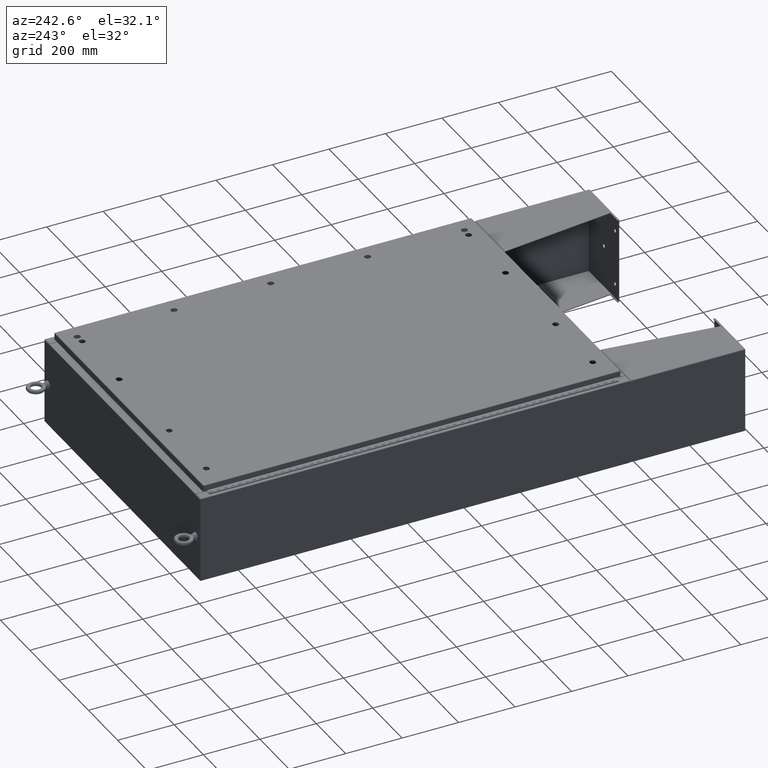
[diagram: clean part render]
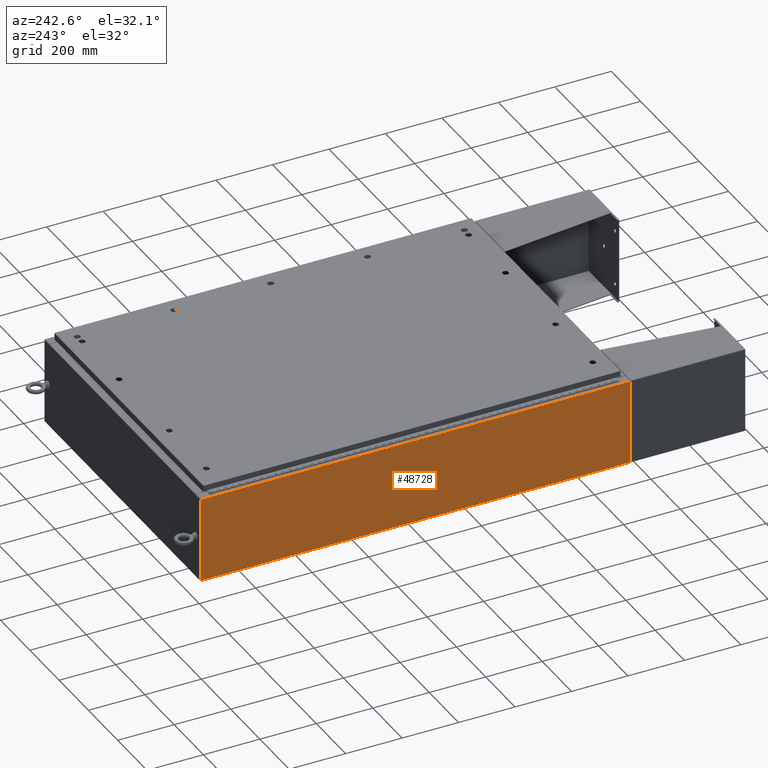
[diagram: same view with one face highlighted and labeled with its STEP entity id]
A machine part, auxiliary view. The second image highlights one B-rep face of the part: STEP entity #48728.
In plain terms, the highlighted planar face has unit normal (1, 0, 0).
Its self-contained STEP definition (entity closure, byte-faithful):
#2641 = DIRECTION ( 'NONE',  ( 0.0000000000000000000, 1.000000000000000000, 0.0000000000000000000 ) ) ;
#3229 = DIRECTION ( 'NONE',  ( 1.000000000000000000, 9.509888230953479100E-046, 3.665280361804584200E-015 ) ) ;
#4523 = CARTESIAN_POINT ( 'NONE',  ( -21.00000000000000400, -29.92530000000000400, 0.01299999999999764400 ) ) ;
#4525 = AXIS2_PLACEMENT_3D ( 'NONE', #32310, #3229, #37252 ) ;
#5305 = CARTESIAN_POINT ( 'NONE',  ( -21.00000000000000400, 29.92530000000000000, 0.01299999999999764900 ) ) ;
#9127 = EDGE_CURVE ( 'NONE', #22301, #46234, #19985, .T. ) ;
#9935 = EDGE_CURVE ( 'NONE', #58957, #16827, #48839, .T. ) ;
#10652 = ORIENTED_EDGE ( 'NONE', *, *, #9935, .F. ) ;
#15878 = ORIENTED_EDGE ( 'NONE', *, *, #53533, .T. ) ;
#16827 = VERTEX_POINT ( 'NONE', #5305 ) ;
#19119 = CARTESIAN_POINT ( 'NONE',  ( -21.00000000000000400, -29.92530000000000400, -7.723170125390786300E-014 ) ) ;
#19505 = FACE_OUTER_BOUND ( 'NONE', #37782, .T. ) ;
#19985 = LINE ( 'NONE', #45461, #45922 ) ;
#20251 = LINE ( 'NONE', #19119, #21760 ) ;
#21123 = ORIENTED_EDGE ( 'NONE', *, *, #51958, .T. ) ;
#21760 = VECTOR ( 'NONE', #33812, 39.37007874015748100 ) ;
#22301 = VERTEX_POINT ( 'NONE', #53172 ) ;
#25292 = DIRECTION ( 'NONE',  ( -9.509888230953479100E-046, 1.000000000000000000, -3.531521666798127500E-060 ) ) ;
#31070 = CARTESIAN_POINT ( 'NONE',  ( -21.00000000000000400, 29.92530000000000000, -7.723170125390786300E-014 ) ) ;
#32310 = CARTESIAN_POINT ( 'NONE',  ( -21.00000000000000400, 0.0000000000000000000, -7.723170125390786300E-014 ) ) ;
#33812 = DIRECTION ( 'NONE',  ( -3.665280361804584200E-015, 0.0000000000000000000, 1.000000000000000000 ) ) ;
#33940 = CARTESIAN_POINT ( 'NONE',  ( -21.00000000000000400, 29.92530000000000000, 0.01299999999999764400 ) ) ;
#37252 = DIRECTION ( 'NONE',  ( 3.665280361804584200E-015, 0.0000000000000000000, -1.000000000000000000 ) ) ;
#37782 = EDGE_LOOP ( 'NONE', ( #57115, #15878, #10652, #21123 ) ) ;
#43509 = VECTOR ( 'NONE', #60248, 39.37007874015748100 ) ;
#45461 = CARTESIAN_POINT ( 'NONE',  ( -21.00000000000005000, -29.92530000000000700, 11.83760000000000000 ) ) ;
#45922 = VECTOR ( 'NONE', #2641, 39.37007874015748100 ) ;
#46234 = VERTEX_POINT ( 'NONE', #54812 ) ;
#48728 = ADVANCED_FACE ( 'NONE', ( #19505 ), #61501, .F. ) ;
#48839 = LINE ( 'NONE', #33940, #61768 ) ;
#51958 = EDGE_CURVE ( 'NONE', #58957, #22301, #20251, .T. ) ;
#53172 = CARTESIAN_POINT ( 'NONE',  ( -21.00000000000005000, -29.92530000000000400, 11.83760000000000000 ) ) ;
#53533 = EDGE_CURVE ( 'NONE', #46234, #16827, #56470, .T. ) ;
#54812 = CARTESIAN_POINT ( 'NONE',  ( -21.00000000000005000, 29.92530000000000000, 11.83760000000000000 ) ) ;
#56470 = LINE ( 'NONE', #31070, #43509 ) ;
#57115 = ORIENTED_EDGE ( 'NONE', *, *, #9127, .T. ) ;
#58957 = VERTEX_POINT ( 'NONE', #4523 ) ;
#60248 = DIRECTION ( 'NONE',  ( 3.665280361804584200E-015, -2.676795568328568700E-032, -1.000000000000000000 ) ) ;
#61501 = PLANE ( 'NONE',  #4525 ) ;
#61768 = VECTOR ( 'NONE', #25292, 39.37007874015748100 ) ;